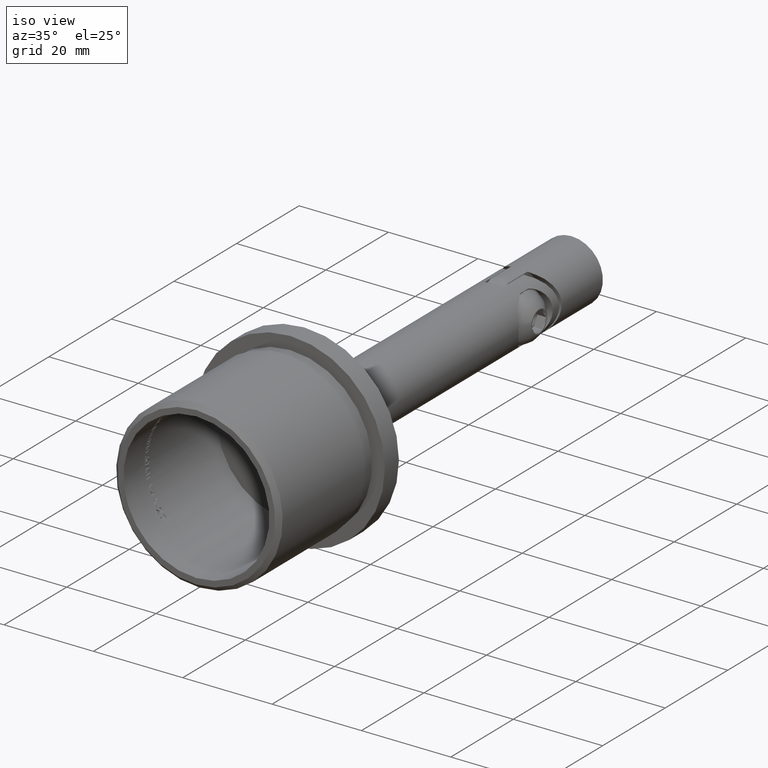
[diagram: clean part render]
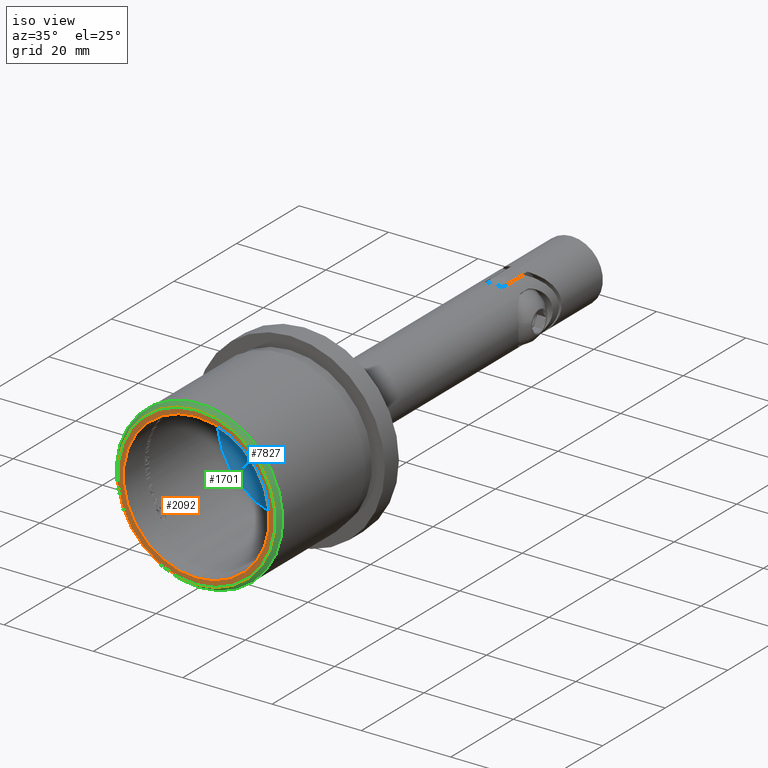
[diagram: same view with three faces highlighted in distinct colors, each labeled with its STEP entity id]
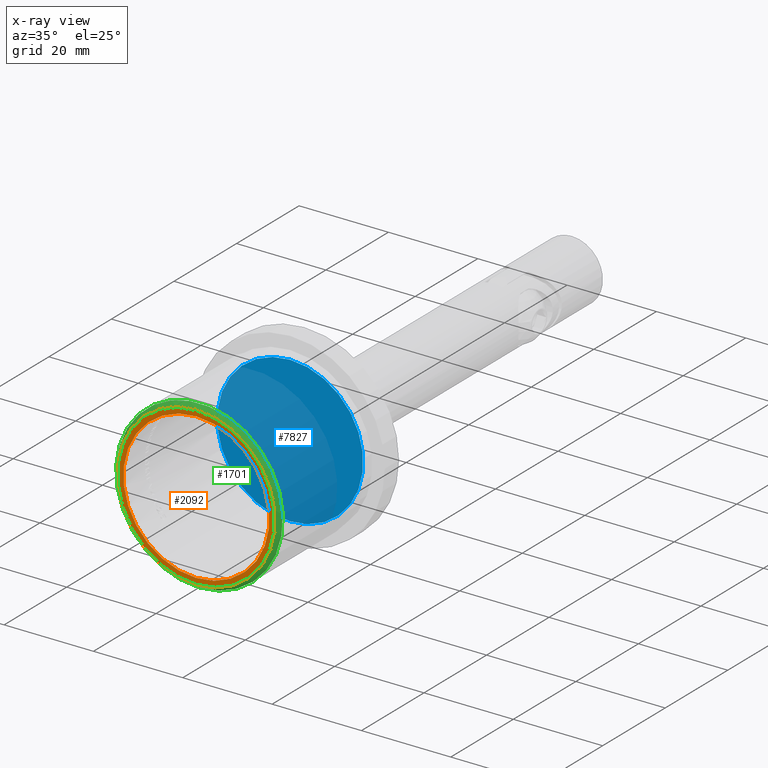
[diagram: x-ray of the same camera — body ghosted, the three highlighted faces saturated]
A machine part, iso view with three faces highlighted in distinct colors.
The next image is the same camera in x-ray (body ghosted, the three faces saturated) — at least one of them is partly hidden behind the body in this view.
Their STEP definitions:

[orange] entity #2092 — the highlighted planar face has unit normal (0, -1, 0).
#362 = FACE_BOUND ( 'NONE', #8944, .T. ) ;
#1190 = DIRECTION ( 'NONE',  ( -0.000000000000000000, -1.000000000000000000, -0.000000000000000000 ) ) ;
#1343 = AXIS2_PLACEMENT_3D ( 'NONE', #3312, #1190, #5360 ) ;
#1608 = AXIS2_PLACEMENT_3D ( 'NONE', #10911, #9624, #8517 ) ;
#2092 = ADVANCED_FACE ( 'NONE', ( #5942, #362 ), #7641, .T. ) ;
#2275 = CARTESIAN_POINT ( 'NONE',  ( 0.000000000000000000, 0.000000000000000000, -16.35000000000000142 ) ) ;
#3312 = CARTESIAN_POINT ( 'NONE',  ( 0.000000000000000000, 0.000000000000000000, 0.000000000000000000 ) ) ;
#3397 = EDGE_CURVE ( 'NONE', #4450, #4450, #8383, .T. ) ;
#4450 = VERTEX_POINT ( 'NONE', #6346 ) ;
#4592 = EDGE_LOOP ( 'NONE', ( #8041 ) ) ;
#5360 = DIRECTION ( 'NONE',  ( 0.000000000000000000, 0.000000000000000000, -1.000000000000000000 ) ) ;
#5942 = FACE_OUTER_BOUND ( 'NONE', #4592, .T. ) ;
#6346 = CARTESIAN_POINT ( 'NONE',  ( 0.000000000000000000, 0.000000000000000000, -17.64999999999999858 ) ) ;
#6676 = DIRECTION ( 'NONE',  ( 0.000000000000000000, -1.000000000000000000, -0.000000000000000000 ) ) ;
#7641 = PLANE ( 'NONE',  #9873 ) ;
#8041 = ORIENTED_EDGE ( 'NONE', *, *, #3397, .T. ) ;
#8383 = CIRCLE ( 'NONE', #1343, 17.64999999999999858 ) ;
#8517 = DIRECTION ( 'NONE',  ( 0.000000000000000000, 0.000000000000000000, -1.000000000000000000 ) ) ;
#8593 = EDGE_CURVE ( 'NONE', #9037, #9037, #11050, .T. ) ;
#8944 = EDGE_LOOP ( 'NONE', ( #11789 ) ) ;
#9037 = VERTEX_POINT ( 'NONE', #2275 ) ;
#9624 = DIRECTION ( 'NONE',  ( -0.000000000000000000, -1.000000000000000000, -0.000000000000000000 ) ) ;
#9873 = AXIS2_PLACEMENT_3D ( 'NONE', #13043, #6676, #12916 ) ;
#10911 = CARTESIAN_POINT ( 'NONE',  ( 0.000000000000000000, 0.000000000000000000, 0.000000000000000000 ) ) ;
#11050 = CIRCLE ( 'NONE', #1608, 16.35000000000000142 ) ;
#11789 = ORIENTED_EDGE ( 'NONE', *, *, #8593, .F. ) ;
#12916 = DIRECTION ( 'NONE',  ( 0.000000000000000000, 0.000000000000000000, -1.000000000000000000 ) ) ;
#13043 = CARTESIAN_POINT ( 'NONE',  ( 17.64999999999999858, -1.408343819019453563E-16, 0.000000000000000000 ) ) ;

[blue] entity #7827 — the highlighted planar face has unit normal (0, -1, 0).
#1163 = CARTESIAN_POINT ( 'NONE',  ( 0.000000000000000000, 30.00000000000000000, -16.35000000000000142 ) ) ;
#1556 = EDGE_CURVE ( 'NONE', #11564, #11564, #6308, .T. ) ;
#2073 = DIRECTION ( 'NONE',  ( 0.000000000000000000, -1.000000000000000000, -0.000000000000000000 ) ) ;
#4478 = DIRECTION ( 'NONE',  ( -0.000000000000000000, -1.000000000000000000, -0.000000000000000000 ) ) ;
#5119 = CARTESIAN_POINT ( 'NONE',  ( 0.000000000000000000, 30.00000000000000000, 0.000000000000000000 ) ) ;
#5558 = DIRECTION ( 'NONE',  ( 0.000000000000000000, 0.000000000000000000, -1.000000000000000000 ) ) ;
#5797 = AXIS2_PLACEMENT_3D ( 'NONE', #5119, #2073, #7216 ) ;
#6308 = CIRCLE ( 'NONE', #13074, 16.35000000000000142 ) ;
#7216 = DIRECTION ( 'NONE',  ( 0.000000000000000000, 0.000000000000000000, -1.000000000000000000 ) ) ;
#7827 = ADVANCED_FACE ( 'NONE', ( #11298 ), #11649, .T. ) ;
#8699 = CARTESIAN_POINT ( 'NONE',  ( 0.000000000000000000, 30.00000000000000000, 0.000000000000000000 ) ) ;
#10730 = ORIENTED_EDGE ( 'NONE', *, *, #1556, .T. ) ;
#11072 = EDGE_LOOP ( 'NONE', ( #10730 ) ) ;
#11298 = FACE_OUTER_BOUND ( 'NONE', #11072, .T. ) ;
#11564 = VERTEX_POINT ( 'NONE', #1163 ) ;
#11649 = PLANE ( 'NONE',  #5797 ) ;
#13074 = AXIS2_PLACEMENT_3D ( 'NONE', #8699, #4478, #5558 ) ;

[green] entity #1701 — the highlighted conical surface has half-angle 45 deg.
#63 = FACE_BOUND ( 'NONE', #714, .T. ) ;
#181 = CARTESIAN_POINT ( 'NONE',  ( 0.000000000000000000, 1.000000000000000888, -18.64999999999999858 ) ) ;
#714 = EDGE_LOOP ( 'NONE', ( #1256 ) ) ;
#1190 = DIRECTION ( 'NONE',  ( -0.000000000000000000, -1.000000000000000000, -0.000000000000000000 ) ) ;
#1219 = CONICAL_SURFACE ( 'NONE', #12115, 17.64999999999999858, 0.7853981633974482790 ) ;
#1256 = ORIENTED_EDGE ( 'NONE', *, *, #3397, .F. ) ;
#1269 = DIRECTION ( 'NONE',  ( -0.000000000000000000, -1.000000000000000000, -0.000000000000000000 ) ) ;
#1343 = AXIS2_PLACEMENT_3D ( 'NONE', #3312, #1190, #5360 ) ;
#1701 = ADVANCED_FACE ( 'NONE', ( #11430, #63 ), #1219, .T. ) ;
#2547 = CARTESIAN_POINT ( 'NONE',  ( 0.000000000000000000, 0.000000000000000000, 0.000000000000000000 ) ) ;
#2712 = EDGE_LOOP ( 'NONE', ( #4048 ) ) ;
#3257 = CARTESIAN_POINT ( 'NONE',  ( 0.000000000000000000, 1.000000000000000888, 0.000000000000000000 ) ) ;
#3312 = CARTESIAN_POINT ( 'NONE',  ( 0.000000000000000000, 0.000000000000000000, 0.000000000000000000 ) ) ;
#3397 = EDGE_CURVE ( 'NONE', #4450, #4450, #8383, .T. ) ;
#4048 = ORIENTED_EDGE ( 'NONE', *, *, #9920, .T. ) ;
#4450 = VERTEX_POINT ( 'NONE', #6346 ) ;
#5360 = DIRECTION ( 'NONE',  ( 0.000000000000000000, 0.000000000000000000, -1.000000000000000000 ) ) ;
#5636 = CIRCLE ( 'NONE', #11344, 18.64999999999999858 ) ;
#5696 = DIRECTION ( 'NONE',  ( 0.000000000000000000, 0.000000000000000000, 1.000000000000000000 ) ) ;
#6346 = CARTESIAN_POINT ( 'NONE',  ( 0.000000000000000000, 0.000000000000000000, -17.64999999999999858 ) ) ;
#6357 = DIRECTION ( 'NONE',  ( 0.000000000000000000, 0.000000000000000000, -1.000000000000000000 ) ) ;
#7220 = VERTEX_POINT ( 'NONE', #181 ) ;
#8383 = CIRCLE ( 'NONE', #1343, 17.64999999999999858 ) ;
#8972 = DIRECTION ( 'NONE',  ( 0.000000000000000000, 1.000000000000000000, 0.000000000000000000 ) ) ;
#9920 = EDGE_CURVE ( 'NONE', #7220, #7220, #5636, .T. ) ;
#11344 = AXIS2_PLACEMENT_3D ( 'NONE', #3257, #1269, #6357 ) ;
#11430 = FACE_OUTER_BOUND ( 'NONE', #2712, .T. ) ;
#12115 = AXIS2_PLACEMENT_3D ( 'NONE', #2547, #8972, #5696 ) ;